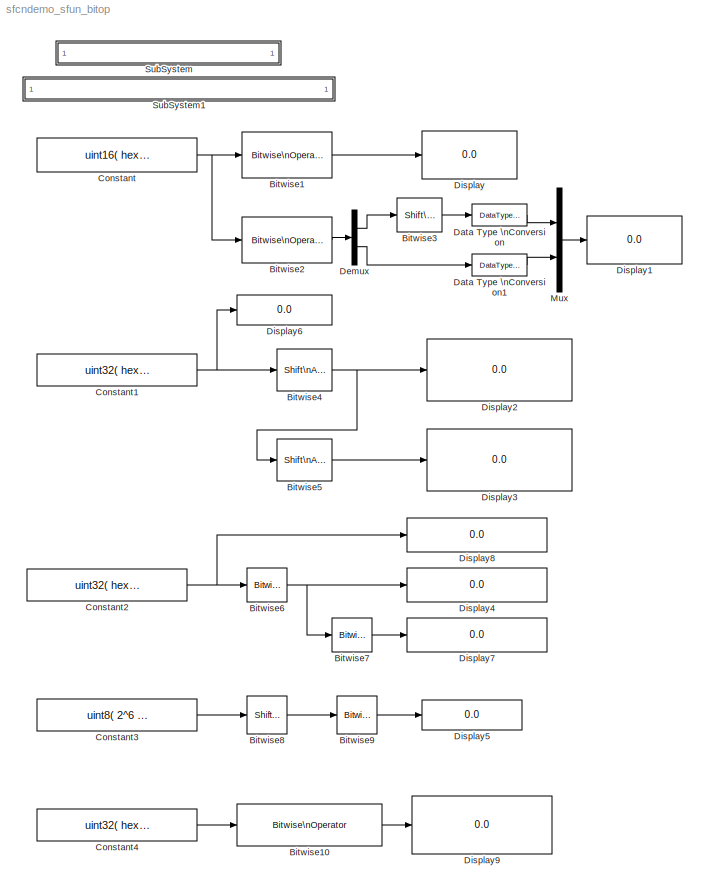
MODEL sfcndemo_sfun_bitop
KIND model
BLOCK [Reference] Bitwise1  REF=simulink/Logic and Bit\nOperations/Bitwise\nOperator
  BitMask = { 'FFFF', 32 }
  BitMaskRealWorld = Stored Integer
  NumInputPorts = 1
  Ports = [1, 1]
  SourceBlock = simulink/Logic and Bit\nOperations/Bitwise\nOperator
  SourceType = Bitwise Operator
  UseBitMask = on
  logicop = XOR
BLOCK [Reference] Bitwise10  REF=simulink/Logic and Bit\nOperations/Bitwise\nOperator
  BitMask = { 'FFFF0000', '00AF8000' }
  BitMaskRealWorld = Stored Integer
  NumInputPorts = 1
  Ports = [1, 1]
  SourceBlock = simulink/Logic and Bit\nOperations/Bitwise\nOperator
  SourceType = Bitwise Operator
  UseBitMask = on
  logicop = AND
BLOCK [Reference] Bitwise2  REF=simulink/Logic and Bit\nOperations/Bitwise\nOperator
  BitMask = { 'FF00', '00FF' }
  BitMaskRealWorld = Stored Integer
  NumInputPorts = 1
  Ports = [1, 1]
  SourceBlock = simulink/Logic and Bit\nOperations/Bitwise\nOperator
  SourceType = Bitwise Operator
  UseBitMask = on
  logicop = AND
BLOCK [Reference] Bitwise3  REF=simulink/Logic and Bit\nOperations/Shift\nArithmetic
  Ports = [1, 1]
  ShowPortLabels = on
  SourceBlock = simulink/Logic and Bit\nOperations/Shift\nArithmetic
  SourceType = Shift Arithmetic
  nBinPtShiftRight = 0
  nBitShiftRight = 8
BLOCK [Reference] Bitwise4  REF=simulink/Logic and Bit\nOperations/Shift\nArithmetic
  Ports = [1, 1]
  ShowPortLabels = on
  SourceBlock = simulink/Logic and Bit\nOperations/Shift\nArithmetic
  SourceType = Shift Arithmetic
  nBinPtShiftRight = 0
  nBitShiftRight = -([ 1, 2, 3 ])
BLOCK [Reference] Bitwise5  REF=simulink/Logic and Bit\nOperations/Shift\nArithmetic
  Ports = [1, 1]
  ShowPortLabels = on
  SourceBlock = simulink/Logic and Bit\nOperations/Shift\nArithmetic
  SourceType = Shift Arithmetic
  nBinPtShiftRight = 0
  nBitShiftRight = [ 1, 2, 3 ]
BLOCK [Reference] Bitwise6  REF=simulink/Logic and Bit\nOperations/Bitwise\nOperator
  BitMask = 1
  BitMaskRealWorld = Stored Integer
  NumInputPorts = 1
  Ports = [1, 1]
  SourceBlock = simulink/Logic and Bit\nOperations/Bitwise\nOperator
  SourceType = Bitwise Operator
  UseBitMask = on
  logicop = NOT
BLOCK [Reference] Bitwise7  REF=simulink/Logic and Bit\nOperations/Bitwise\nOperator
  BitMask = 1
  BitMaskRealWorld = Stored Integer
  NumInputPorts = 1
  Ports = [1, 1]
  SourceBlock = simulink/Logic and Bit\nOperations/Bitwise\nOperator
  SourceType = Bitwise Operator
  UseBitMask = on
  logicop = NOT
BLOCK [Reference] Bitwise8  REF=simulink/Logic and Bit\nOperations/Shift\nArithmetic
  Ports = [1, 1]
  ShowPortLabels = on
  SourceBlock = simulink/Logic and Bit\nOperations/Shift\nArithmetic
  SourceType = Shift Arithmetic
  nBinPtShiftRight = 0
  nBitShiftRight = 5
BLOCK [Reference] Bitwise9  REF=simulink/Logic and Bit\nOperations/Bitwise\nOperator
  BitMask = '03'
  BitMaskRealWorld = Stored Integer
  NumInputPorts = 1
  Ports = [1, 1]
  SourceBlock = simulink/Logic and Bit\nOperations/Bitwise\nOperator
  SourceType = Bitwise Operator
  UseBitMask = on
  logicop = AND
BLOCK [Constant] Constant
  Value = uint16( hex2dec('0A0B') )
BLOCK [Constant] Constant1
  Value = uint32( hex2dec('00330A0B') )
BLOCK [Constant] Constant2
  Value = uint32( hex2dec('F0F0F0F0') )
BLOCK [Constant] Constant3
  Value = uint8( 2^6  + 2^2 + 2^0 )
BLOCK [Constant] Constant4
  Value = uint32( hex2dec('F0F0F0F0') )
BLOCK [DataTypeConversion] Data Type \nConversion
  OutDataTypeMode = uint8
BLOCK [DataTypeConversion] Data Type \nConversion1
  OutDataTypeMode = uint8
BLOCK [Demux] Demux
  Outputs = 2
  Ports = [1, 2]
BLOCK [Display] Display
  Decimation = 1
  Ports = [1]
BLOCK [Display] Display1
  Decimation = 1
  Ports = [1]
BLOCK [Display] Display2
  Decimation = 1
  Format = long
  Ports = [1]
BLOCK [Display] Display3
  Decimation = 1
  Format = long
  Ports = [1]
BLOCK [Display] Display4
  Decimation = 1
  Format = long
  Ports = [1]
BLOCK [Display] Display5
  Decimation = 1
  Ports = [1]
BLOCK [Display] Display6
  Decimation = 1
  Ports = [1]
BLOCK [Display] Display7
  Decimation = 1
  Format = long
  Ports = [1]
BLOCK [Display] Display8
  Decimation = 1
  Format = long
  Ports = [1]
BLOCK [Display] Display9
  Decimation = 1
  Format = long
  Ports = [1]
BLOCK [Mux] Mux
  DisplayOption = bar
  Inputs = 2
  Ports = [2, 1]
BLOCK [SubSystem] SubSystem
  MaskDisplay = disp('matlabroot<path>');
  MaskIconFrame = on
  MaskIconOpaque = on
  MaskIconRotate = none
  MaskIconUnits = autoscale
  MinAlgLoopOccurrences = off
  OpenFcn = edit(fullfile(matlabroot,'simulink','src','sfun_bitop.c'))
  Ports = []
  PropExecContextAcrossSSBoundary = on
  RTWSystemCode = Auto
  TreatAsAtomicUnit = off
BLOCK [SubSystem] SubSystem1
  MaskDisplay = disp('matlabroot<path>');
  MaskIconFrame = on
  MaskIconOpaque = on
  MaskIconRotate = none
  MaskIconUnits = autoscale
  MinAlgLoopOccurrences = off
  OpenFcn = edit(fullfile(matlabroot,'toolbox','simulink','blocks','tlc_c','sfun_bitop.tlc'))
  Ports = []
  PropExecContextAcrossSSBoundary = on
  RTWSystemCode = Auto
  TreatAsAtomicUnit = off
LINE Bitwise10:1 -> Display9:1
LINE Bitwise1:1 -> Display:1
LINE Bitwise2:1 -> Demux:1
LINE Bitwise3:1 -> Data Type \nConversion:1
NET Bitwise4:1 -> Bitwise5:1, Display2:1
LINE Bitwise5:1 -> Display3:1
NET Bitwise6:1 -> Bitwise7:1, Display4:1
LINE Bitwise7:1 -> Display7:1
LINE Bitwise8:1 -> Bitwise9:1
LINE Bitwise9:1 -> Display5:1
NET Constant1:1 -> Bitwise4:1, Display6:1
NET Constant2:1 -> Bitwise6:1, Display8:1
LINE Constant3:1 -> Bitwise8:1
LINE Constant4:1 -> Bitwise10:1
NET Constant:1 -> Bitwise1:1, Bitwise2:1
LINE Data Type \nConversion1:1 -> Mux:2
LINE Data Type \nConversion:1 -> Mux:1
LINE Demux:1 -> Bitwise3:1
LINE Demux:2 -> Data Type \nConversion1:1
LINE Mux:1 -> Display1:1
note: NET lines group one-source signal fan-out (src -> all destinations, sorted); 1:1 wires keep LINE
note: 2 file-system paths scrubbed to <path> (not preserved elsewhere — flat text is the only slx artifact)
